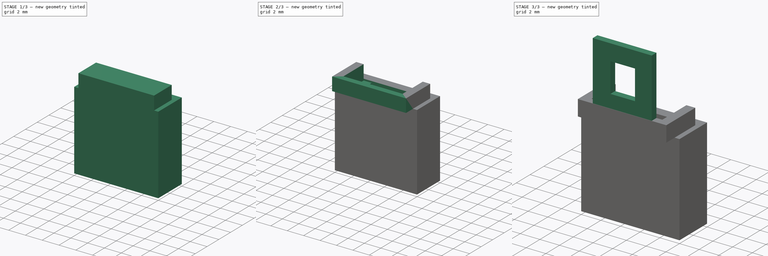
[diagram: build sequence overview — one tinted view per stage of 3, left to right]
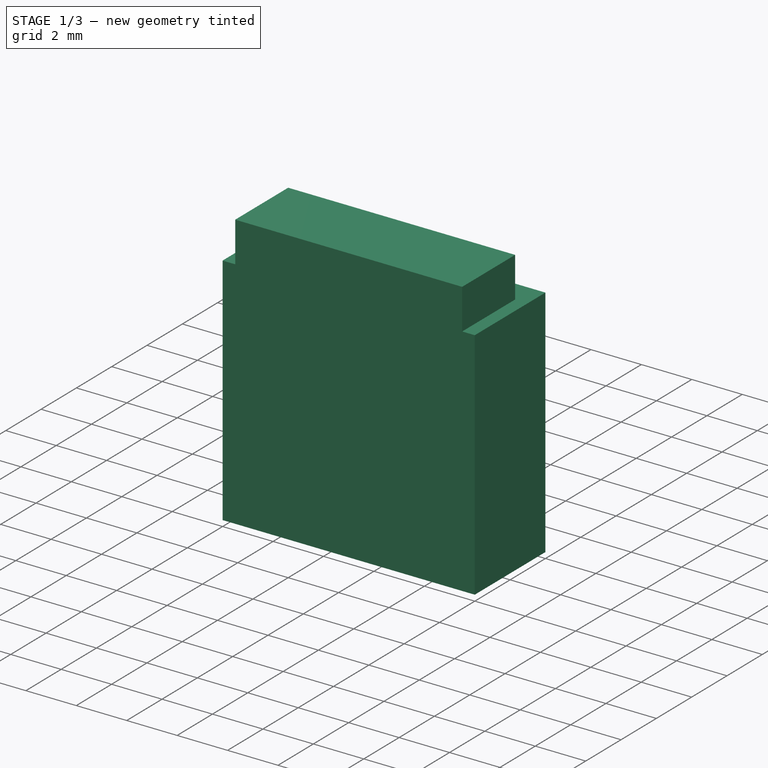
[diagram: stage 1 of 3 — iso view after this stage's code; geometry added in this stage tinted green]
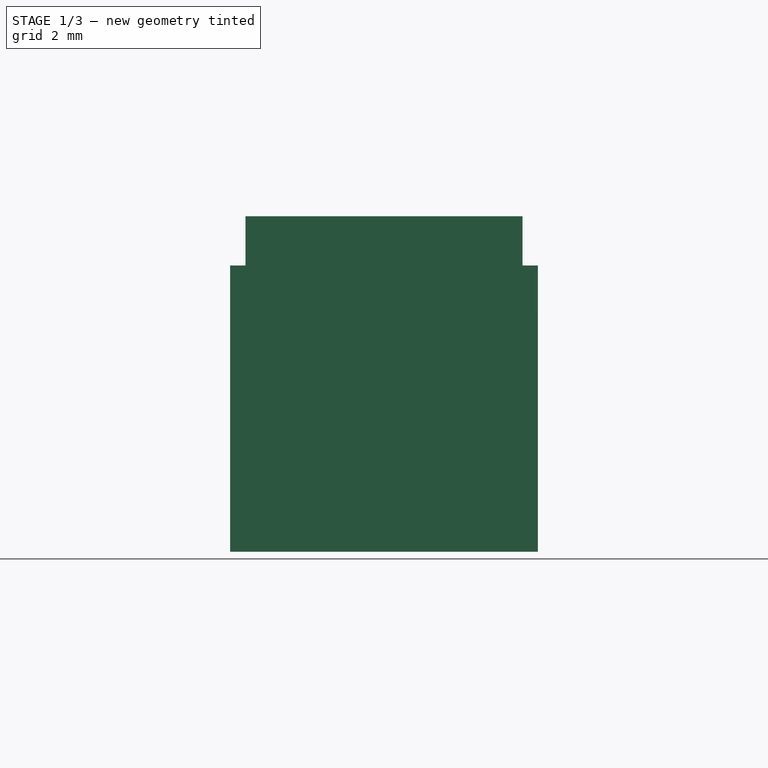
[diagram: stage 1 of 3 — front view after this stage's code; geometry added in this stage tinted green]
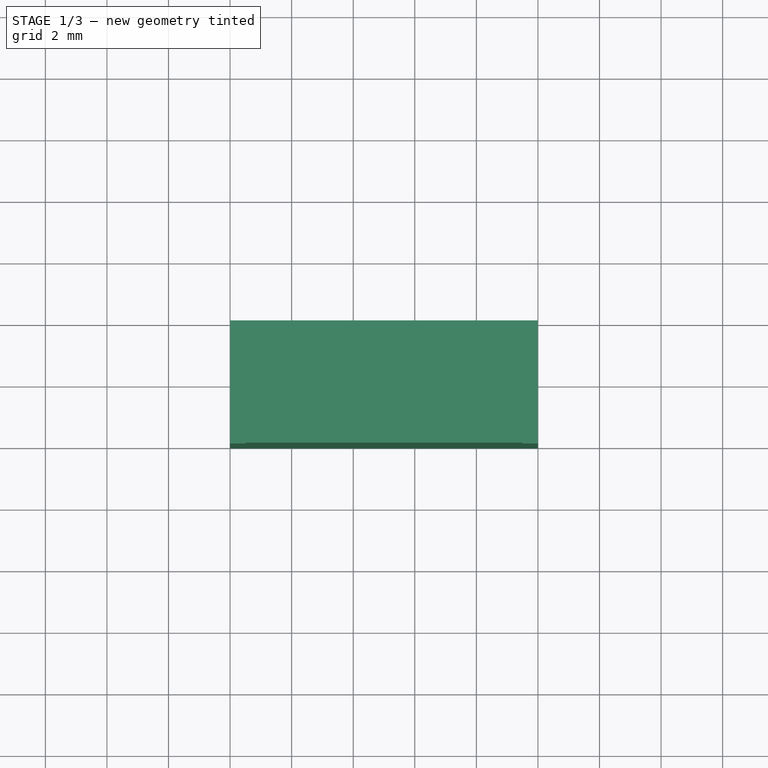
[diagram: stage 1 of 3 — top view after this stage's code; geometry added in this stage tinted green]
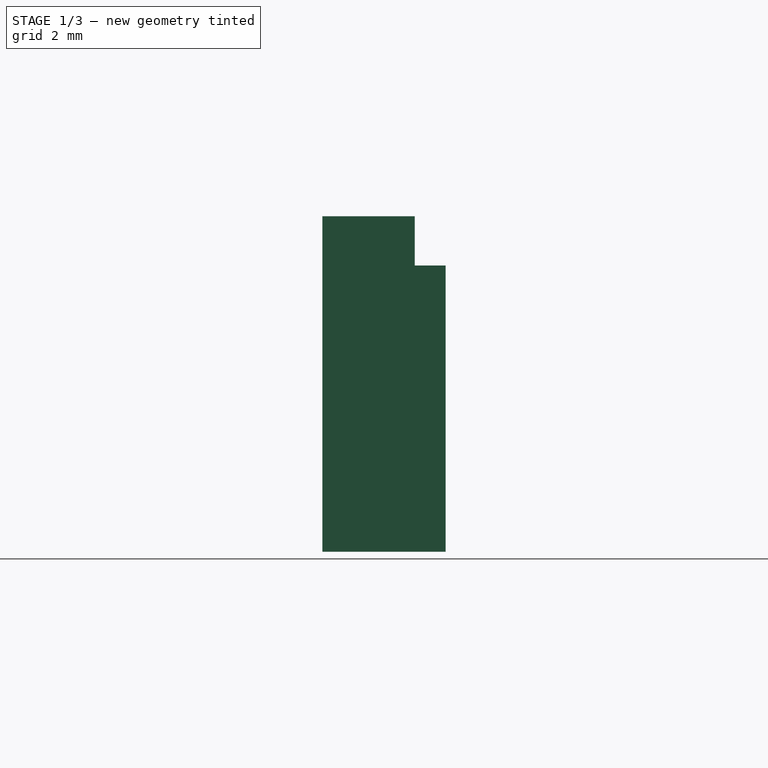
[diagram: stage 1 of 3 — right view after this stage's code; geometry added in this stage tinted green]
FCSTD DOCUMENT  (FreeCAD 1.0R39319 (Git))
Label: drive_button
License: All rights reserved
LicenseURL: https://en.wikipedia.org/wiki/All_rights_reserved
objects: Sketcher::SketchObject×7, PartDesign::Pad×4, PartDesign::Pocket×3, PartDesign::Body×1
note: 36 computed .brp shape members not serialized (recipe doc carries the construction recipe); baked Part::Feature solids carry a one-line shape summary decoded from their .brp

FEATURE [Sketcher::SketchObject] Sketch
  ArcFitTolerance = 1e-06
  AttachmentSupport = -> [XZ_Plane]
  FullyConstrained = true
  MakeInternals = false
  MapMode = 5
  Placement = pos=(0,0,0) rot=(1,0,0;1.5708rad)
  sketch-geometry (4):
    g0: LineSegment StartX=0 StartY=0 StartZ=0 EndX=10 EndY=0 EndZ=0
    g1: LineSegment StartX=10 StartY=0 StartZ=0 EndX=10 EndY=9.3 EndZ=0
    g2: LineSegment StartX=10 StartY=9.3 StartZ=0 EndX=0 EndY=9.3 EndZ=0
    g3: LineSegment StartX=0 StartY=9.3 StartZ=0 EndX=0 EndY=0 EndZ=0
  constraints (11):
    c: Coincident(g0,g1)
    c: Coincident(g1,g2)
    c: Coincident(g2,g3)
    c: Coincident(g3,g0)
    c: Horizontal(g0)
    c: Horizontal(g2)
    c: Vertical(g1)
    c: Vertical(g3)
    c: Distance(g1,g3) = 10
    c: Distance(g0,g2) = 9.3
    c: Coincident(g0,g-1)
FEATURE [PartDesign::Pad] Pad
  Direction = (0,-1,2e-16)
  Length = 4
  Length2 = 10
  Placement = pos=(0,0,0) rot=(1,0,0;1.5708rad)
  Profile = -> Sketch
  ReferenceAxis = -> Sketch [N_Axis]
  Refine = true
  Suppressed = false
  Type = 0
FEATURE [Sketcher::SketchObject] Sketch001
  ArcFitTolerance = 1e-06
  AttachmentSupport = -> [Pad]
  FullyConstrained = true
  MakeInternals = false
  MapMode = 5
  Placement = pos=(0,-4,0) rot=(1,0,0;1.5708rad)
  sketch-geometry (4):
    g0: LineSegment StartX=0.5 StartY=9.3 StartZ=0 EndX=9.5 EndY=9.3 EndZ=0
    g1: LineSegment StartX=9.5 StartY=9.3 StartZ=0 EndX=9.5 EndY=10.9 EndZ=0
    g2: LineSegment StartX=9.5 StartY=10.9 StartZ=0 EndX=0.5 EndY=10.9 EndZ=0
    g3: LineSegment StartX=0.5 StartY=10.9 StartZ=0 EndX=0.5 EndY=9.3 EndZ=0
  constraints (12):
    c: Coincident(g0,g1)
    c: Coincident(g1,g2)
    c: Coincident(g2,g3)
    c: Coincident(g3,g0)
    c: Horizontal(g0)
    c: Horizontal(g2)
    c: Vertical(g1)
    c: Vertical(g3)
    c: Distance(g1,g3) = 9
    c: Distance(g0,g2) = 1.6
    c: DistanceX(g-1,g2) = 0.5
    c: DistanceY(g-1,g0) = 9.3
FEATURE [PartDesign::Pad] Pad001
  BaseFeature = -> Pad
  Direction = (0,-1,2e-16)
  Length = 3
  Length2 = 10
  Placement = pos=(0,0,0) rot=(1,0,0;1.5708rad)
  Profile = -> Sketch001
  ReferenceAxis = -> Sketch001 [N_Axis]
  Refine = true
  Reversed = true
  Suppressed = false
  Type = 0
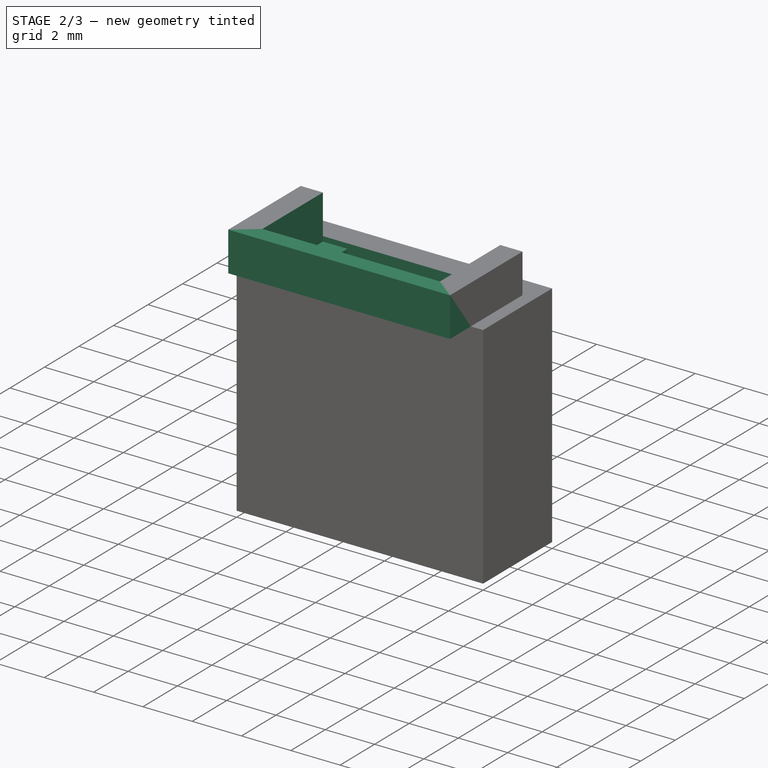
[diagram: stage 2 of 3 — iso view after this stage's code; geometry added in this stage tinted green]
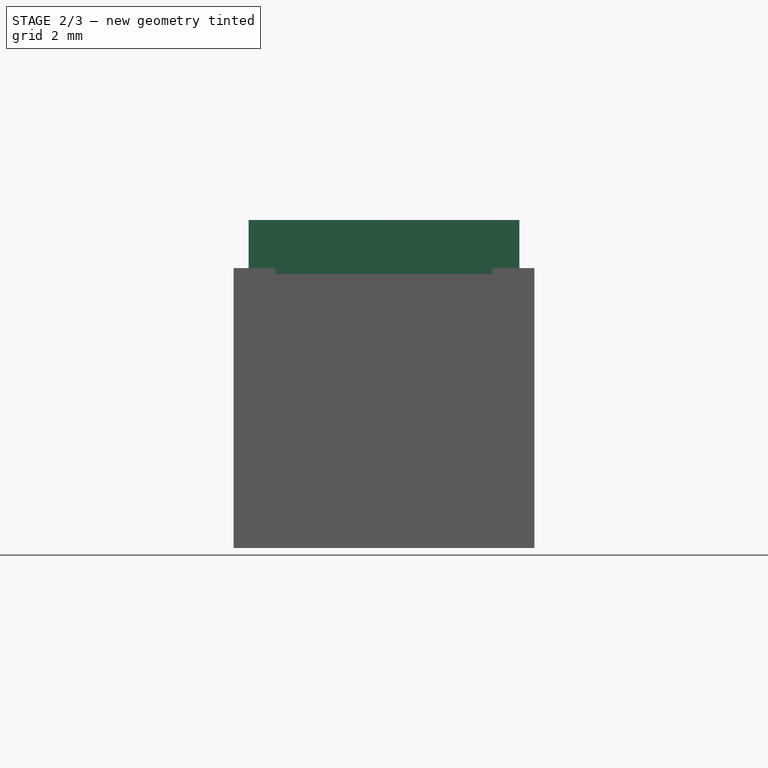
[diagram: stage 2 of 3 — front view after this stage's code; geometry added in this stage tinted green]
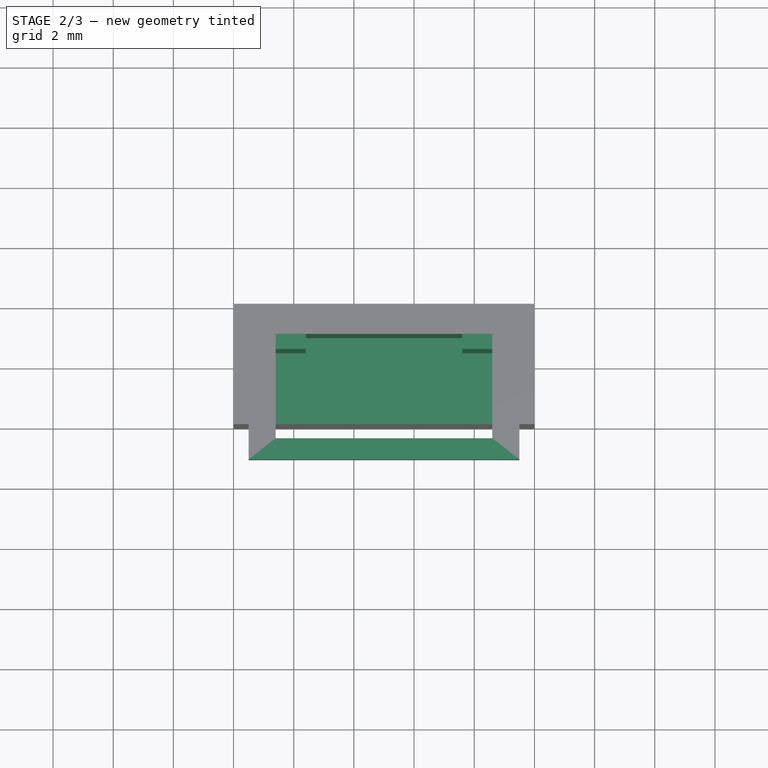
[diagram: stage 2 of 3 — top view after this stage's code; geometry added in this stage tinted green]
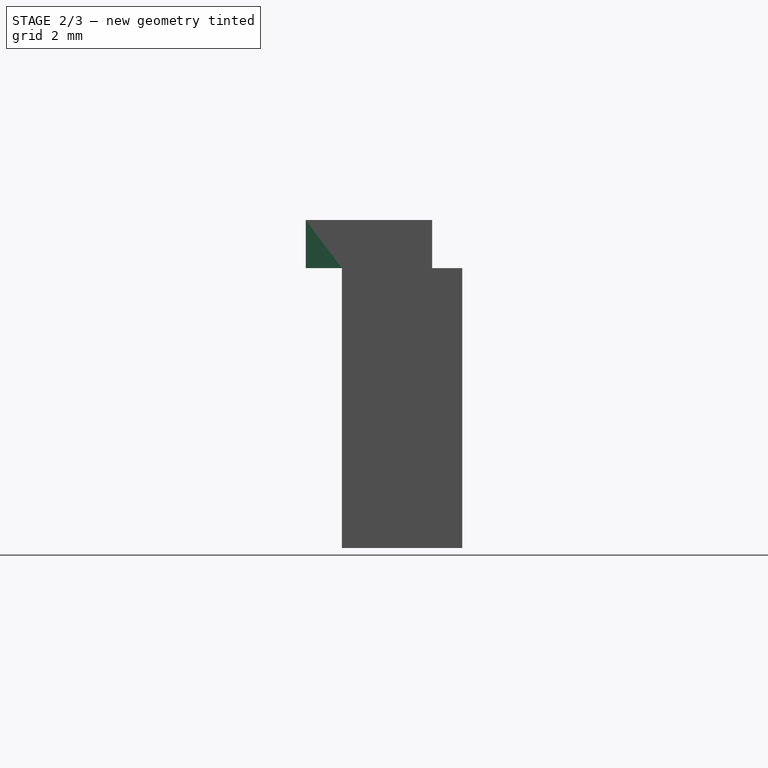
[diagram: stage 2 of 3 — right view after this stage's code; geometry added in this stage tinted green]
FEATURE [Sketcher::SketchObject] Sketch002
  ArcFitTolerance = 1e-06
  AttachmentSupport = -> [Pad001]
  FullyConstrained = true
  MakeInternals = false
  MapMode = 5
  Placement = pos=(0,-4,8e-16) rot=(1,0,0;1.5708rad)
  sketch-geometry (4):
    g0: LineSegment StartX=0.5 StartY=10.9 StartZ=0 EndX=0.5 EndY=9.3 EndZ=0
    g1: LineSegment StartX=0.5 StartY=9.3 StartZ=0 EndX=9.5 EndY=9.3 EndZ=0
    g2: LineSegment StartX=9.5 StartY=9.3 StartZ=0 EndX=9.5 EndY=10.9 EndZ=0
    g3: LineSegment StartX=9.5 StartY=10.9 StartZ=0 EndX=0.5 EndY=10.9 EndZ=0
  constraints (12):
    c: Coincident(g0,g1)
    c: Coincident(g1,g2)
    c: Coincident(g2,g3)
    c: Coincident(g3,g0)
    c: Vertical(g0)
    c: Vertical(g2)
    c: Horizontal(g1)
    c: Horizontal(g3)
    c: Distance(g0,g2) = 9
    c: Distance(g1,g3) = 1.6
    c: Distance(g0,g-2) = 0.5
    c: DistanceY(g-1,g1) = 9.3
FEATURE [PartDesign::Pad] Pad002
  BaseFeature = -> Pad001
  Direction = (0,-1,2e-16)
  Length = 1.2
  Length2 = 10
  Placement = pos=(0,0,0) rot=(1,0,0;1.5708rad)
  Profile = -> Sketch002
  ReferenceAxis = -> Sketch002 [N_Axis]
  Refine = true
  Suppressed = false
  Type = 0
FEATURE [Sketcher::SketchObject] Sketch003
  ArcFitTolerance = 1e-06
  AttachmentSupport = -> [Pad002]
  FullyConstrained = true
  MakeInternals = false
  MapMode = 5
  Placement = pos=(0,3.1e-15,10.9) rot=(0,0,1;3.14159rad)
  sketch-geometry (4):
    g0: LineSegment StartX=-8.6 StartY=1 StartZ=0 EndX=-1.4 EndY=1 EndZ=0
    g1: LineSegment StartX=-1.4 StartY=1 StartZ=0 EndX=-1.4 EndY=4.5 EndZ=0
    g2: LineSegment StartX=-1.4 StartY=4.5 StartZ=0 EndX=-8.6 EndY=4.5 EndZ=0
    g3: LineSegment StartX=-8.6 StartY=4.5 StartZ=0 EndX=-8.6 EndY=1 EndZ=0
  constraints (12):
    c: Coincident(g0,g1)
    c: Coincident(g1,g2)
    c: Coincident(g2,g3)
    c: Coincident(g3,g0)
    c: Horizontal(g0)
    c: Horizontal(g2)
    c: Vertical(g1)
    c: Vertical(g3)
    c: Distance(g1,g3) = 7.2
    c: Distance(g0,g2) = 3.5
    c: DistanceX(g1,g-1) = 1.4
    c: DistanceY(g-1,g0) = 1
FEATURE [PartDesign::Pocket] Pocket
  BaseFeature = -> Pad002
  Direction = (0,0,-1)
  Length = 1.8
  Length2 = 5
  Placement = pos=(0,0,0) rot=(1,0,0;1.5708rad)
  Profile = -> Sketch003
  ReferenceAxis = -> Sketch003 [N_Axis]
  Refine = true
  Suppressed = false
  Type = 0
FEATURE [Sketcher::SketchObject] Sketch004
  ArcFitTolerance = 1e-06
  AttachmentSupport = -> [Pocket]
  FullyConstrained = true
  MakeInternals = false
  MapMode = 5
  Placement = pos=(0,0,9.1) rot=(0,0,1;3.14159rad)
  sketch-geometry (12):
    g0: LineSegment StartX=-8.6 StartY=1.5 StartZ=0 EndX=-7.6 EndY=1.5 EndZ=0
    g1: LineSegment StartX=-7.6 StartY=1.5 StartZ=0 EndX=-7.6 EndY=1 EndZ=0
    g2: LineSegment StartX=-7.6 StartY=1 StartZ=0 EndX=-2.4 EndY=1 EndZ=0
    g3: LineSegment StartX=-2.4 StartY=1 StartZ=0 EndX=-2.4 EndY=1.5 EndZ=0
    g4: LineSegment StartX=-2.4 StartY=1.5 StartZ=0 EndX=-1.4 EndY=1.5 EndZ=0
    g5: LineSegment StartX=-1.4 StartY=1.5 StartZ=0 EndX=-1.4 EndY=2 EndZ=0
    g6: LineSegment StartX=-1.4 StartY=2 StartZ=0 EndX=-2.4 EndY=2 EndZ=0
    g7: LineSegment StartX=-2.4 StartY=2 StartZ=0 EndX=-2.4 EndY=2.5 EndZ=0
    g8: LineSegment StartX=-2.4 StartY=2.5 StartZ=0 EndX=-7.85 EndY=2.5 EndZ=0
    g9: LineSegment StartX=-7.85 StartY=2.5 StartZ=0 EndX=-7.85 EndY=2 EndZ=0
    g10: LineSegment StartX=-7.85 StartY=2 StartZ=0 EndX=-8.6 EndY=2 EndZ=0
    g11: LineSegment StartX=-8.6 StartY=2 StartZ=0 EndX=-8.6 EndY=1.5 EndZ=0
  constraints (36):
    c: Horizontal(g0)
    c: Coincident(g0,g1)
    c: Vertical(g1)
    c: Coincident(g1,g2)
    c: Horizontal(g2)
    c: Coincident(g2,g3)
    c: Vertical(g3)
    c: Coincident(g3,g4)
    c: Horizontal(g4)
    c: Coincident(g4,g5)
    c: Vertical(g5)
    c: Coincident(g5,g6)
    c: Horizontal(g6)
    c: Coincident(g6,g7)
    c: Vertical(g7)
    c: Coincident(g7,g8)
    c: Horizontal(g8)
    c: Coincident(g8,g9)
    c: Vertical(g9)
    c: Coincident(g9,g10)
    c: Horizontal(g10)
    c: Coincident(g10,g11)
    c: Coincident(g11,g0)
    c: Vertical(g11)
    c: DistanceX(g3,g4) = 1
    c: DistanceX(g1,g2) = 5.2
    c: DistanceX(g8,g7) = 5.45
    c: DistanceX(g6,g5) = 1
    c: DistanceY(g2,g3) = 0.5
    c: Distance(g4,g5) = 0.5
    c: DistanceY(g6,g7) = 0.5
    c: DistanceY(g9,g8) = 0.5
    c: DistanceY(g1,g0) = 0.5
    c: DistanceY(g-1,g2) = 1
    c: DistanceX(g5,g-1) = 1.4
    c: Distance(g0,g0) = 1
FEATURE [PartDesign::Pocket] Pocket001
  BaseFeature = -> Pocket
  Direction = (0,0,-1)
  Length = 8
  Length2 = 5
  Placement = pos=(0,0,0) rot=(1,0,0;1.5708rad)
  Profile = -> Sketch004
  ReferenceAxis = -> Sketch004 [N_Axis]
  Refine = true
  Suppressed = false
  Type = 0
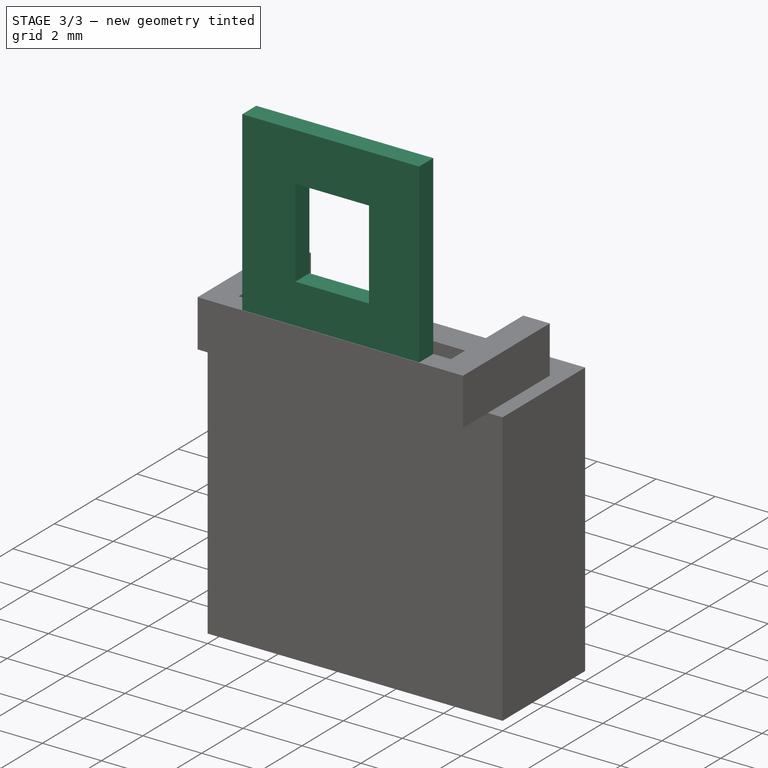
[diagram: stage 3 of 3 — iso view after this stage's code; geometry added in this stage tinted green]
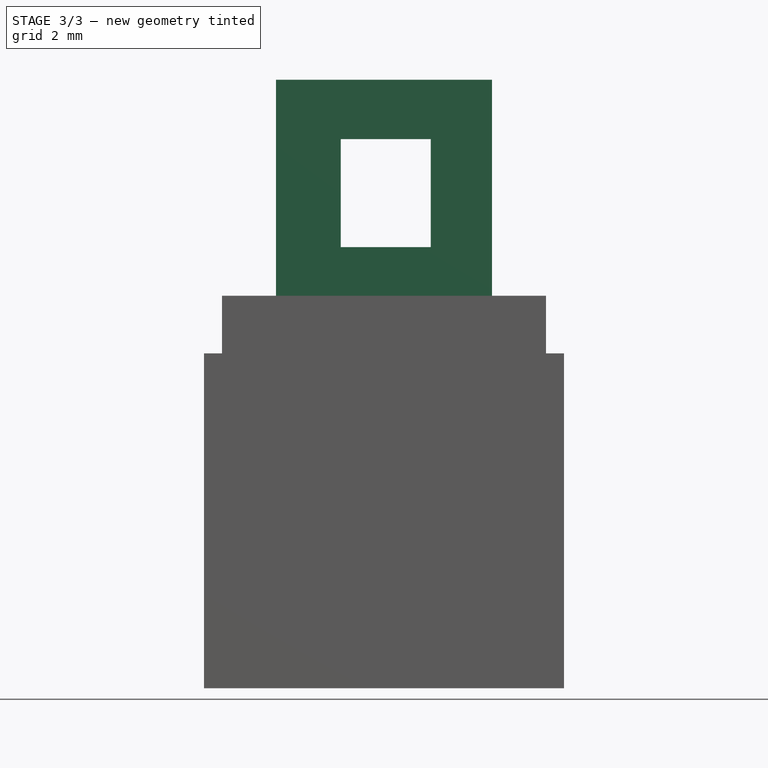
[diagram: stage 3 of 3 — front view after this stage's code; geometry added in this stage tinted green]
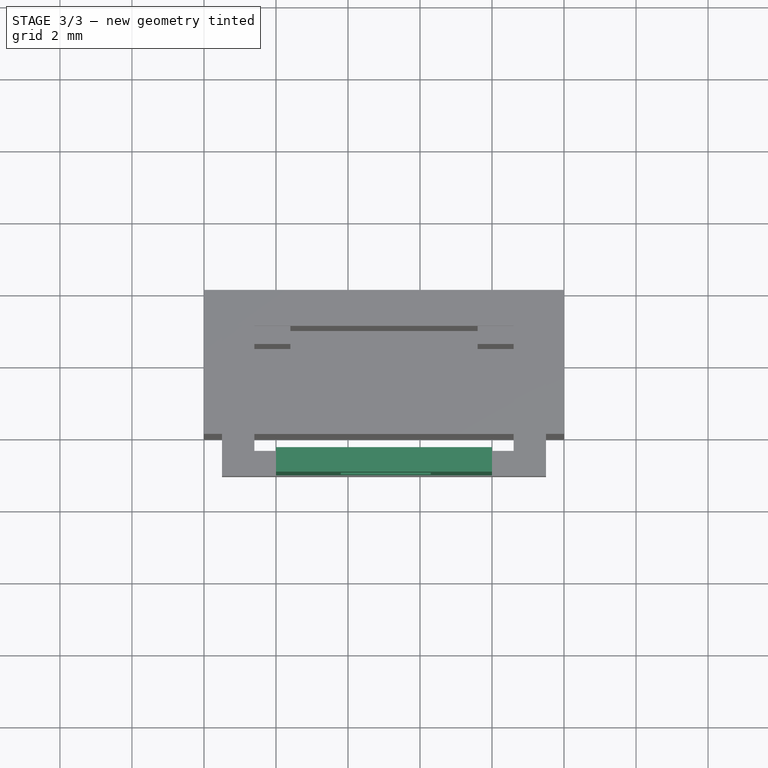
[diagram: stage 3 of 3 — top view after this stage's code; geometry added in this stage tinted green]
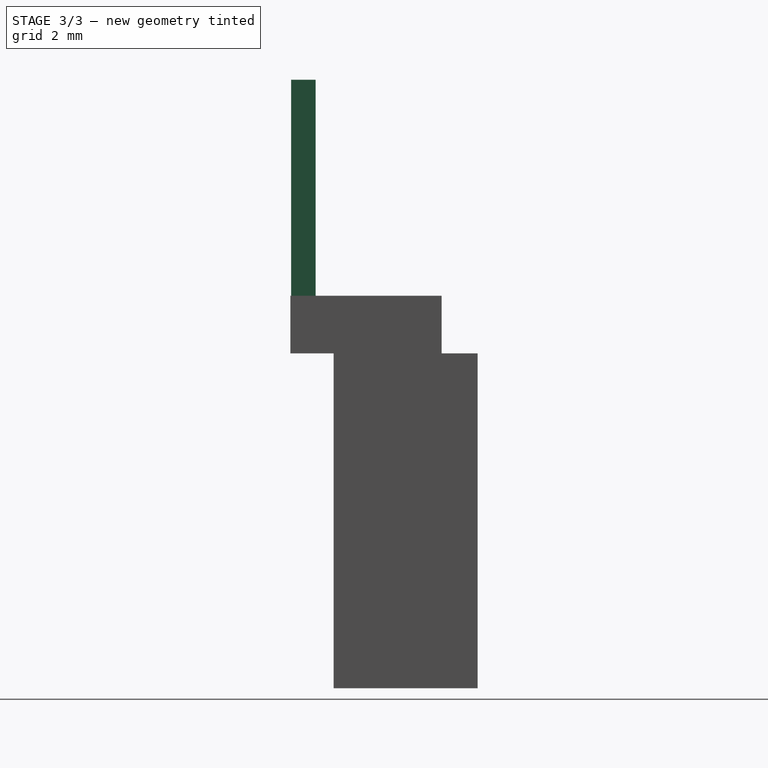
[diagram: stage 3 of 3 — right view after this stage's code; geometry added in this stage tinted green]
FEATURE [Sketcher::SketchObject] Sketch005
  ArcFitTolerance = 1e-06
  AttachmentSupport = -> [Pocket001]
  FullyConstrained = true
  MakeInternals = false
  MapMode = 5
  Placement = pos=(0,3.1e-15,10.9) rot=(0,0,1;3.14159rad)
  sketch-geometry (4):
    g0: LineSegment StartX=-8 StartY=5.18 StartZ=0 EndX=-8 EndY=4.5 EndZ=0
    g1: LineSegment StartX=-8 StartY=4.5 StartZ=0 EndX=-2 EndY=4.5 EndZ=0
    g2: LineSegment StartX=-2 StartY=4.5 StartZ=0 EndX=-2 EndY=5.18 EndZ=0
    g3: LineSegment StartX=-2 StartY=5.18 StartZ=0 EndX=-8 EndY=5.18 EndZ=0
  constraints (12):
    c: Coincident(g0,g1)
    c: Coincident(g1,g2)
    c: Coincident(g2,g3)
    c: Coincident(g3,g0)
    c: Vertical(g0)
    c: Vertical(g2)
    c: Horizontal(g1)
    c: Horizontal(g3)
    c: Distance(g0,g2) = 6
    c: Distance(g1,g3) = 0.68
    c: DistanceX(g2,g-1) = 2
    c: DistanceY(g-1,g0) = 4.5
FEATURE [PartDesign::Pad] Pad003
  BaseFeature = -> Pocket001
  Direction = (0,0,1)
  Length = 6
  Length2 = 10
  Placement = pos=(0,0,0) rot=(1,0,0;1.5708rad)
  Profile = -> Sketch005
  ReferenceAxis = -> Sketch005 [N_Axis]
  Refine = true
  Suppressed = false
  Type = 0
FEATURE [Sketcher::SketchObject] Sketch006
  ArcFitTolerance = 1e-06
  AttachmentSupport = -> [Pad003]
  FullyConstrained = true
  MakeInternals = false
  MapMode = 5
  Placement = pos=(0,-5.18,0) rot=(1,0,0;1.5708rad)
  sketch-geometry (4):
    g0: LineSegment StartX=3.8 StartY=15.25 StartZ=0 EndX=3.8 EndY=12.25 EndZ=0
    g1: LineSegment StartX=3.8 StartY=12.25 StartZ=0 EndX=6.3 EndY=12.25 EndZ=0
    g2: LineSegment StartX=6.3 StartY=12.25 StartZ=0 EndX=6.3 EndY=15.25 EndZ=0
    g3: LineSegment StartX=6.3 StartY=15.25 StartZ=0 EndX=3.8 EndY=15.25 EndZ=0
  constraints (12):
    c: Coincident(g0,g1)
    c: Coincident(g1,g2)
    c: Coincident(g2,g3)
    c: Coincident(g3,g0)
    c: Vertical(g0)
    c: Vertical(g2)
    c: Horizontal(g1)
    c: Horizontal(g3)
    c: Distance(g0,g2) = 2.5
    c: Distance(g1,g3) = 3
    c: DistanceY(g-1,g1) = 12.25
    c: DistanceX(g-1,g0) = 3.8
FEATURE [PartDesign::Pocket] Pocket002
  BaseFeature = -> Pad003
  Direction = (0,1,-2e-16)
  Length = 5
  Length2 = 5
  Placement = pos=(0,0,0) rot=(1,0,0;1.5708rad)
  Profile = -> Sketch006
  ReferenceAxis = -> Sketch006 [N_Axis]
  Refine = true
  Suppressed = false
  Type = 0
FEATURE [PartDesign::Body] Body
  AllowCompound = false
  Group = -> [Sketch,Pad,Sketch001,Pad001,Sketch002,Pad002,Sketch003,Pocket,Sketch004,Pocket001,Sketch005,Pad003,Sketch006,Pocket002]
  Origin = -> Origin
  Tip = -> Pocket002
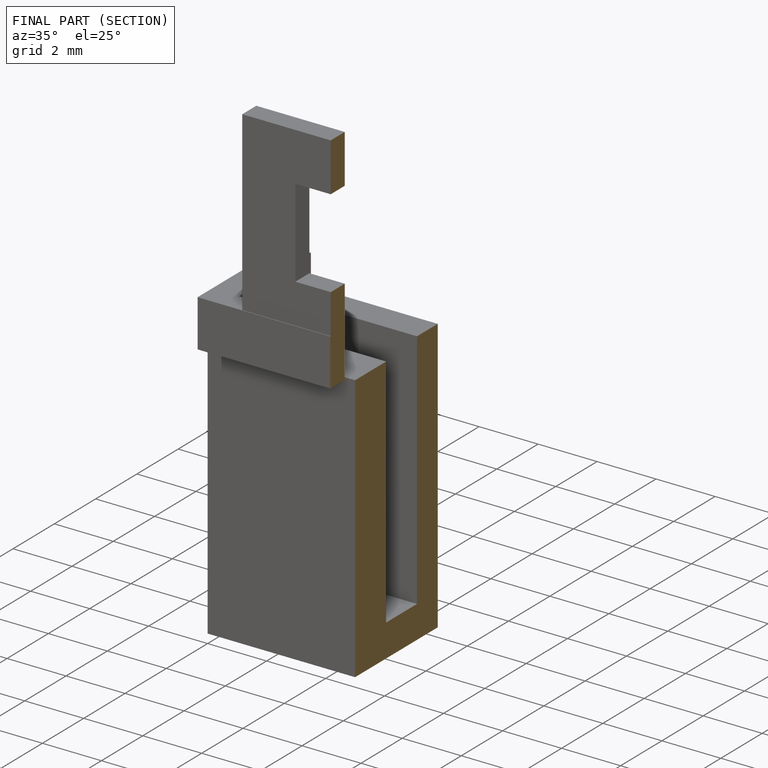
[diagram: finished part — half-section view (interior)]
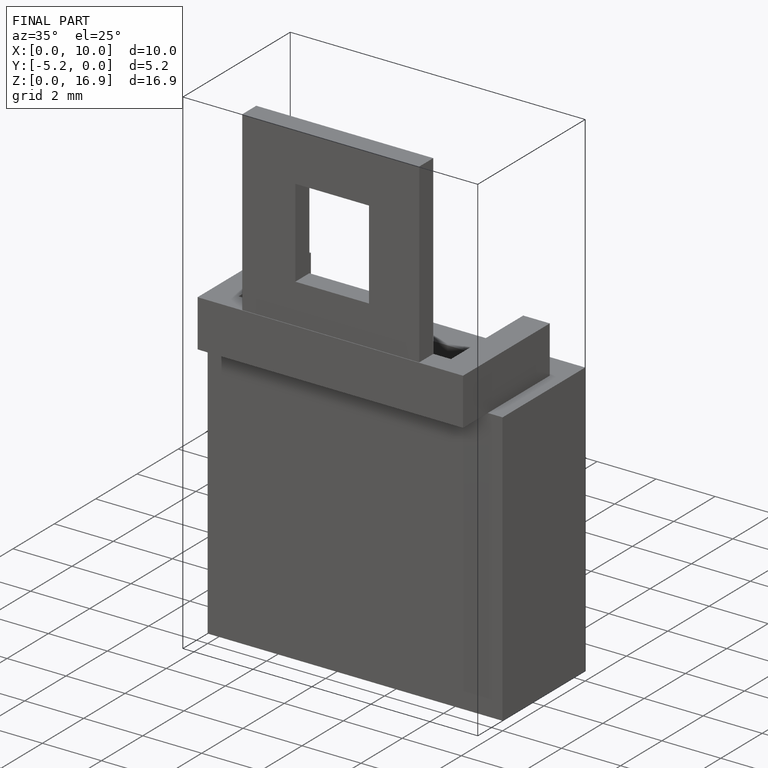
[diagram: finished part — iso view with bounding-box wireframe]
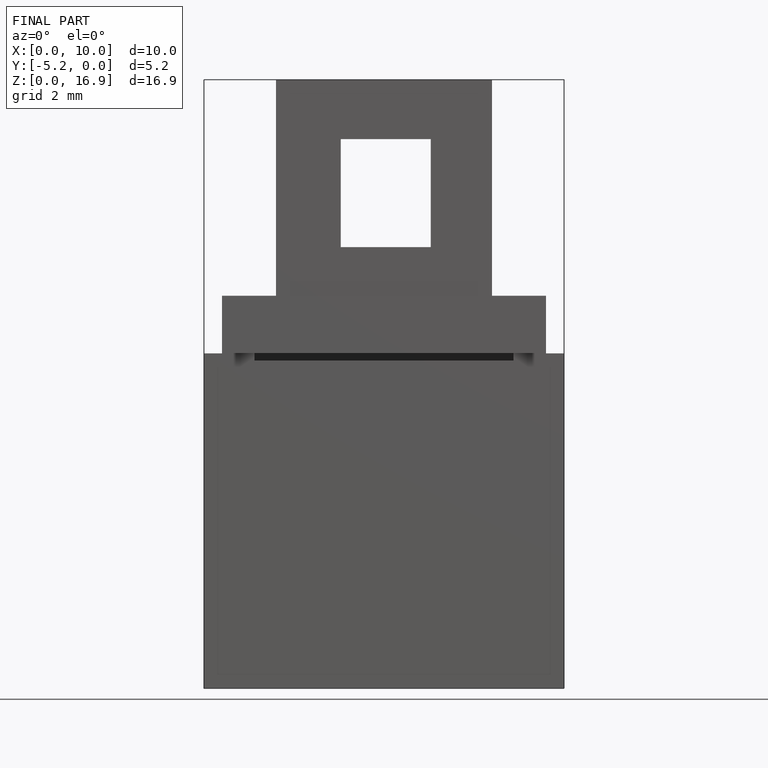
[diagram: finished part — front view with bounding-box wireframe]
